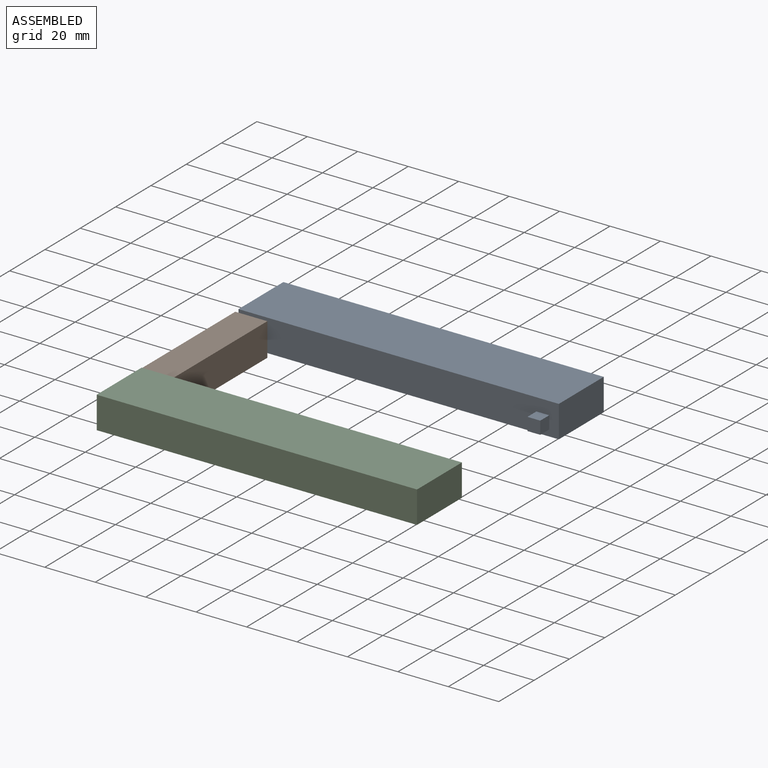
[diagram: assembled view]
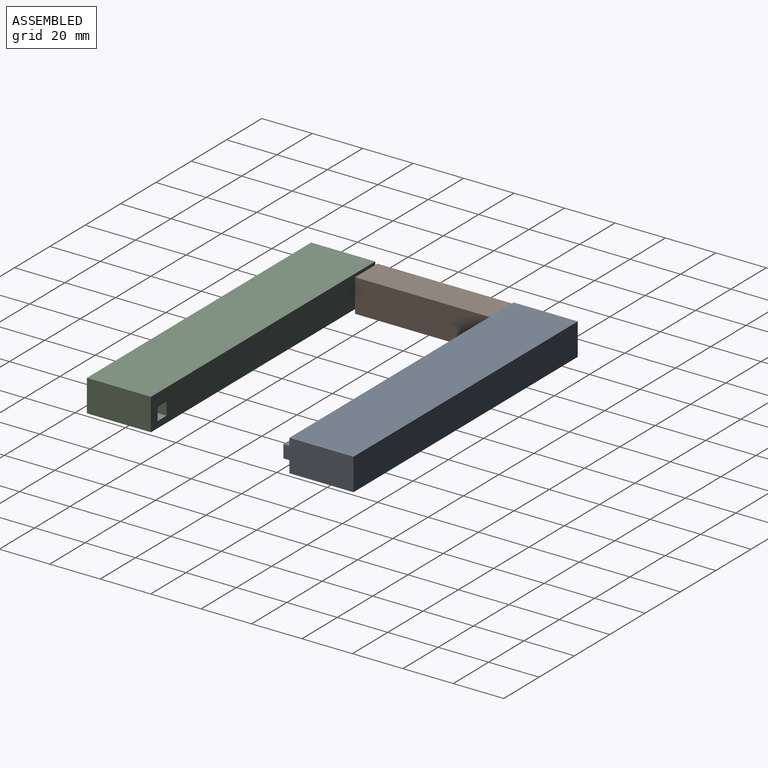
[diagram: assembled view, second angle]
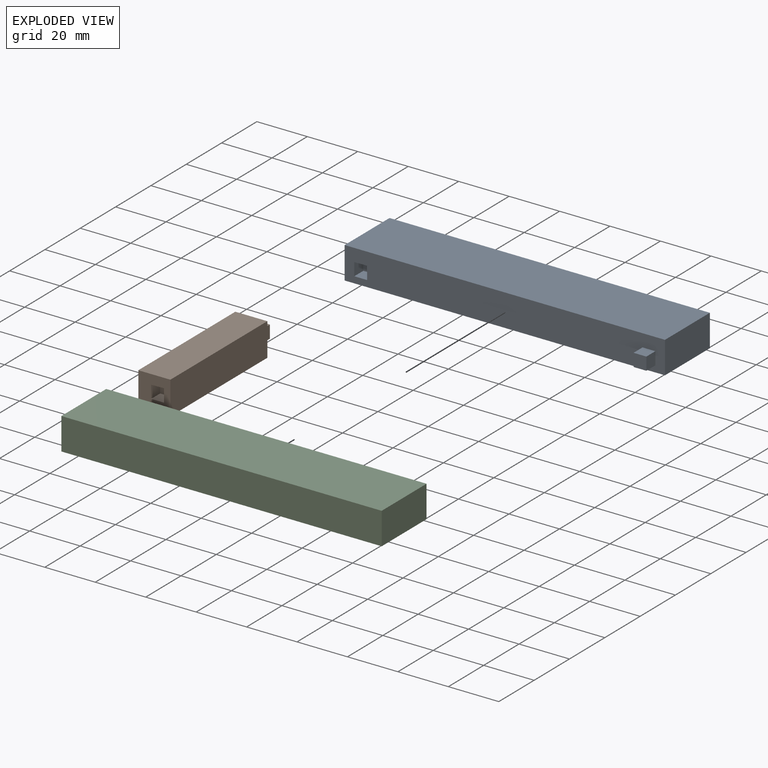
[diagram: exploded view]
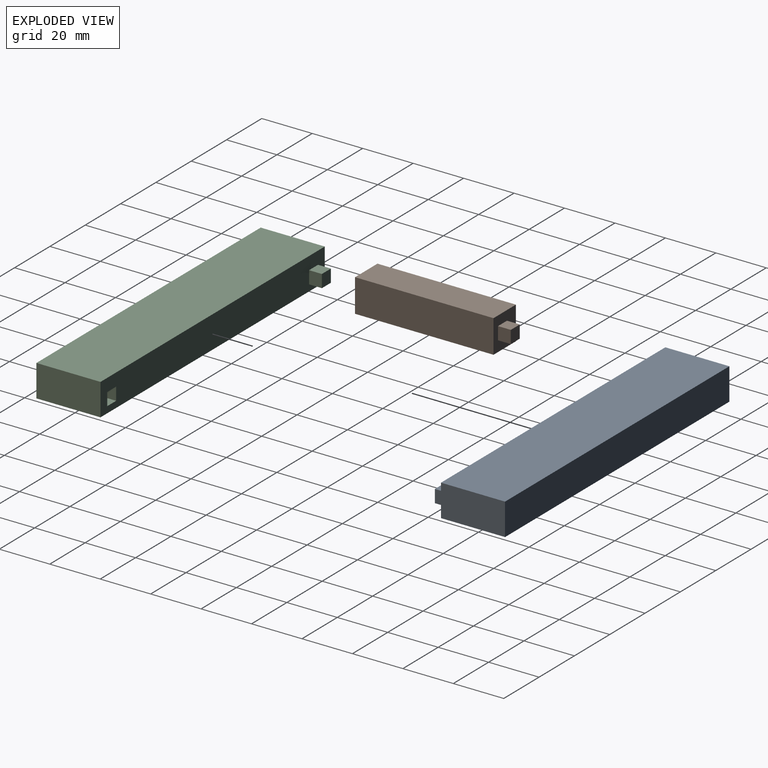
[diagram: exploded view, second angle]
ASSEMBLY  parts=3 mates=2
PART A: 16 faces, bbox 127x30.5x12.7 mm
  f0: plane 127x12.7mm, normal (0,1,0), area 1561.3mm2, adj f1,f3,f4,f5,f6,f7,f8,f9
  f1: plane 25.4x12.7mm, normal (-1,0,0), area 322.6mm2, adj f0,f2,f4,f5
  f2: plane 127x12.7mm, normal (0,-1,0), area 1612.9mm2, adj f1,f3,f4,f5
  f3: plane 25.4x12.7mm, normal (1,0,0), area 322.6mm2, adj f0,f2,f4,f5
  f4: plane 127x25.4mm, normal (0,0,1), area 3225.8mm2, adj f0,f1,f2,f3
  f5: plane 127x25.4mm, normal (0,0,-1), area 3225.8mm2, adj f0,f1,f2,f3
  f6: plane 5.08x5.08mm, normal (-1,0,0), area 25.8mm2, adj f0,f7,f9,f10
  f7: plane 5.08x5.08mm, normal (0,0,-1), area 25.8mm2, adj f0,f6,f8,f10
  f8: plane 5.08x5.08mm, normal (1,0,0), area 25.8mm2, adj f0,f7,f9,f10
  f9: plane 5.08x5.08mm, normal (0,0,1), area 25.8mm2, adj f0,f6,f8,f10
  f10: plane 5.08x5.08mm, normal (0,1,0), area 25.8mm2, adj f6,f7,f8,f9
  f11: plane 5.08x5.08mm, normal (0,0,1), area 25.8mm2, adj f0,f12,f14,f15
  f12: plane 5.08x5.08mm, normal (1,0,0), area 25.8mm2, adj f0,f11,f13,f15
  f13: plane 5.08x5.08mm, normal (0,0,-1), area 25.8mm2, adj f0,f12,f14,f15
  f14: plane 5.08x5.08mm, normal (-1,0,0), area 25.8mm2, adj f0,f11,f13,f15
  f15: plane 5.08x5.08mm, normal (0,1,0), area 25.8mm2, adj f11,f12,f13,f14
PART B: 16 faces, bbox 60x13.1x12.7 mm
  f0: plane 13.12x12.7mm, normal (-1,0,0), area 140.8mm2, adj f2,f3,f4,f5,f11,f12,f13,f14
  f1: plane 13.12x12.7mm, normal (1,0,0), area 140.8mm2, adj f2,f3,f4,f5,f6,f7,f8,f9
  f2: plane 54.9x12.7mm, normal (0,1,0), area 697.3mm2, adj f0,f1,f4,f5
  f3: plane 54.9x12.7mm, normal (0,-1,0), area 697.3mm2, adj f0,f1,f4,f5
  f4: plane 54.9x13.12mm, normal (0,0,1), area 720.1mm2, adj f0,f1,f2,f3
  f5: plane 54.9x13.12mm, normal (0,0,-1), area 720.1mm2, adj f0,f1,f2,f3
  f6: plane 5.08x5.08mm, normal (0,0,1), area 25.8mm2, adj f1,f7,f9,f10
  f7: plane 5.08x5.08mm, normal (0,-1,0), area 25.8mm2, adj f1,f6,f8,f10
  f8: plane 5.08x5.08mm, normal (0,0,-1), area 25.8mm2, adj f1,f7,f9,f10
  f9: plane 5.08x5.08mm, normal (0,1,0), area 25.8mm2, adj f1,f6,f8,f10
  f10: plane 5.08x5.08mm, normal (1,0,0), area 25.8mm2, adj f6,f7,f8,f9
  f11: plane 5.08x5.08mm, normal (0,-1,0), area 25.8mm2, adj f0,f12,f14,f15
  f12: plane 5.08x5.08mm, normal (0,0,-1), area 25.8mm2, adj f0,f11,f13,f15
  f13: plane 5.08x5.08mm, normal (0,1,0), area 25.8mm2, adj f0,f12,f14,f15
  f14: plane 5.08x5.08mm, normal (0,0,1), area 25.8mm2, adj f0,f11,f13,f15
  f15: plane 5.08x5.08mm, normal (-1,0,0), area 25.8mm2, adj f11,f12,f13,f14
PART C: same geometry as A
PLACE A rot(axis=(0,0,1),180deg) t=(125.55,68.89,-26.47)mm
PLACE B rot(axis=(0.58,-0.58,-0.58),120deg) t=(9.98,68.89,-15.04)mm
PLACE C t=(-1.45,13.99,-26.47)mm
MATE parallel A.f15 <-> B.f15  axis (0,-1,0) through (4.9,73.97,-21.39)mm
MATE parallel B.f10 <-> C.f10  axis (0,-1,0) through (4.9,19.07,-21.39)mm
